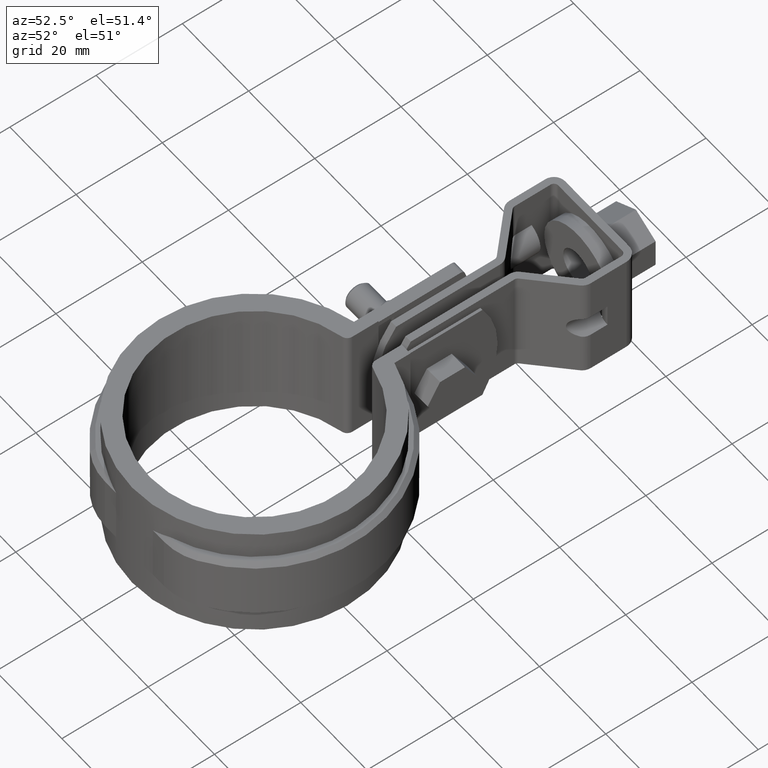
[diagram: clean part render]
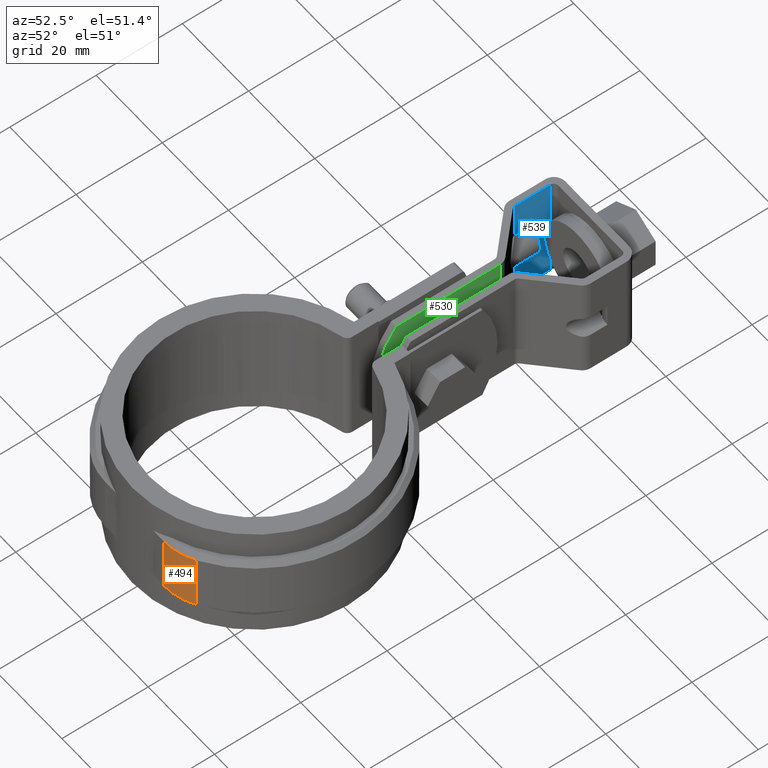
[diagram: same view with three faces highlighted in distinct colors, each labeled with its STEP entity id]
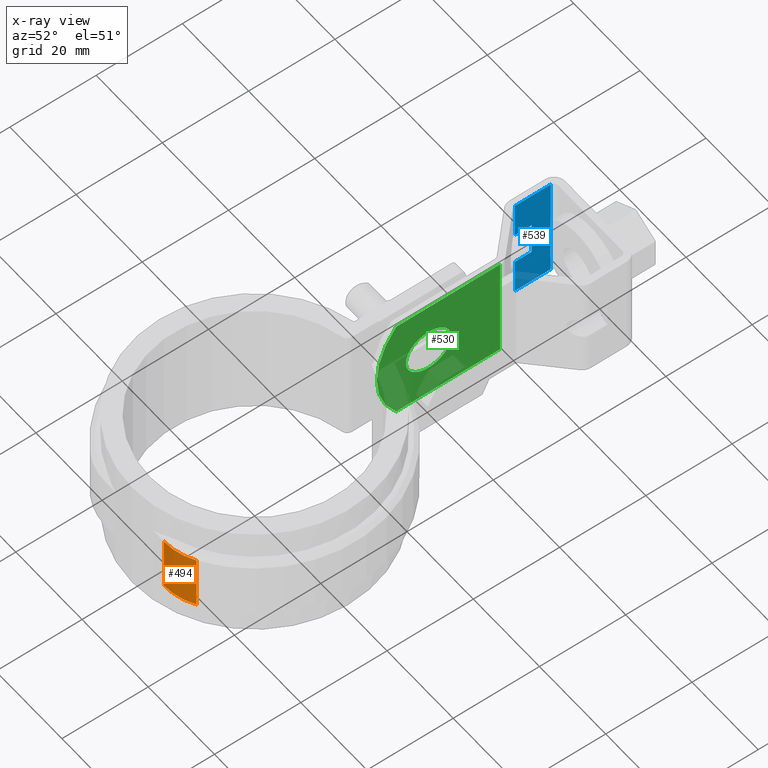
[diagram: x-ray of the same camera — body ghosted, the three highlighted faces saturated]
A machine part, auxiliary view with three faces highlighted in distinct colors.
The next image is the same camera in x-ray (body ghosted, the three faces saturated) — at least one of them is partly hidden behind the body in this view.
Their STEP definitions:

[orange] entity #494 — the highlighted cylindrical surface (partial cylindrical patch) has radius 13.6 mm, axis along (0, 0, -1).
#494 = ADVANCED_FACE( '', ( #988 ), #989, .T. );
#988 = FACE_OUTER_BOUND( '', #2346, .T. );
#989 = CYLINDRICAL_SURFACE( '', #2347, 13.6000000000000 );
#2346 = EDGE_LOOP( '', ( #5341, #5342, #5343, #5344 ) );
#2347 = AXIS2_PLACEMENT_3D( '', #5345, #5346, #5347 );
#5341 = ORIENTED_EDGE( '', *, *, #7730, .T. );
#5342 = ORIENTED_EDGE( '', *, *, #7732, .T. );
#5343 = ORIENTED_EDGE( '', *, *, #7720, .F. );
#5344 = ORIENTED_EDGE( '', *, *, #7719, .T. );
#5345 = CARTESIAN_POINT( '', ( 8.88873022427838, -14.2500000000000, -20.0000000000000 ) );
#5346 = DIRECTION( '', ( 0.000000000000000, 0.000000000000000, -1.00000000000000 ) );
#5347 = DIRECTION( '', ( 0.194983714095246, 0.980806480014087, 0.000000000000000 ) );
#7719 = EDGE_CURVE( '', #8988, #8991, #8993, .T. );
#7720 = EDGE_CURVE( '', #8988, #8994, #8995, .T. );
#7730 = EDGE_CURVE( '', #8991, #9003, #9007, .T. );
#7732 = EDGE_CURVE( '', #9003, #8994, #9009, .F. );
#8988 = VERTEX_POINT( '', #13133 );
#8991 = VERTEX_POINT( '', #13138 );
#8993 = CIRCLE( '', #13141, 13.6000000000000 );
#8994 = VERTEX_POINT( '', #13142 );
#8995 = LINE( '', #13143, #13144 );
#9003 = VERTEX_POINT( '', #13156 );
#9007 = LINE( '', #13161, #13162 );
#9009 = CIRCLE( '', #13165, 13.6000000000000 );
#13133 = CARTESIAN_POINT( '', ( 8.88873022427839, -27.8500000000000, -19.0000000000000 ) );
#13138 = CARTESIAN_POINT( '', ( 16.0865111739769, -25.7891485561179, -19.0000000000000 ) );
#13141 = AXIS2_PLACEMENT_3D( '', #15064, #15065, #15066 );
#13142 = CARTESIAN_POINT( '', ( 8.88873022427839, -27.8500000000000, -6.00000000000000 ) );
#13143 = CARTESIAN_POINT( '', ( 8.88873022427839, -27.8500000000000, -20.0000000000000 ) );
#13144 = VECTOR( '', #15067, 1000.00000000000 );
#13156 = CARTESIAN_POINT( '', ( 16.0865111739769, -25.7891485561179, -6.00000000000000 ) );
#13161 = CARTESIAN_POINT( '', ( 16.0865111739769, -25.7891485561179, -20.0000000000000 ) );
#13162 = VECTOR( '', #15085, 1000.00000000000 );
#13165 = AXIS2_PLACEMENT_3D( '', #15087, #15088, #15089 );
#15064 = CARTESIAN_POINT( '', ( 8.88873022427838, -14.2500000000000, -19.0000000000000 ) );
#15065 = DIRECTION( '', ( 0.000000000000000, 0.000000000000000, 1.00000000000000 ) );
#15066 = DIRECTION( '', ( 1.00000000000000, 0.000000000000000, 0.000000000000000 ) );
#15067 = DIRECTION( '', ( 0.000000000000000, 0.000000000000000, 1.00000000000000 ) );
#15085 = DIRECTION( '', ( 0.000000000000000, 0.000000000000000, 1.00000000000000 ) );
#15087 = CARTESIAN_POINT( '', ( 8.88873022427838, -14.2500000000000, -6.00000000000000 ) );
#15088 = DIRECTION( '', ( 0.000000000000000, 0.000000000000000, 1.00000000000000 ) );
#15089 = DIRECTION( '', ( 1.00000000000000, 0.000000000000000, 0.000000000000000 ) );

[blue] entity #539 — the highlighted planar face has unit normal (1, 0, -0).
#539 = ADVANCED_FACE( '', ( #1084 ), #1085, .T. );
#1084 = FACE_OUTER_BOUND( '', #2469, .T. );
#1085 = PLANE( '', #2470 );
#2469 = EDGE_LOOP( '', ( #5826, #5827, #5828, #5829, #5830, #5831, #5832, #5833, #5834, #5835 ) );
#2470 = AXIS2_PLACEMENT_3D( '', #5836, #5837, #5838 );
#5826 = ORIENTED_EDGE( '', *, *, #7825, .F. );
#5827 = ORIENTED_EDGE( '', *, *, #7848, .T. );
#5828 = ORIENTED_EDGE( '', *, *, #7851, .F. );
#5829 = ORIENTED_EDGE( '', *, *, #7852, .F. );
#5830 = ORIENTED_EDGE( '', *, *, #7742, .T. );
#5831 = ORIENTED_EDGE( '', *, *, #7853, .T. );
#5832 = ORIENTED_EDGE( '', *, *, #7827, .F. );
#5833 = ORIENTED_EDGE( '', *, *, #7832, .F. );
#5834 = ORIENTED_EDGE( '', *, *, #7841, .F. );
#5835 = ORIENTED_EDGE( '', *, *, #7830, .F. );
#5836 = CARTESIAN_POINT( '', ( -10.6500000006431, 76.8045271144761, -7.02937846819296E-008 ) );
#5837 = DIRECTION( '', ( 1.00000000000000, 3.46787463237663E-012, -2.03765905737930E-012 ) );
#5838 = DIRECTION( '', ( -3.46787463341350E-012, 1.00000000000000, -5.08856068393042E-010 ) );
#7742 = EDGE_CURVE( '', #9026, #9024, #9027, .T. );
#7825 = EDGE_CURVE( '', #9168, #9170, #9171, .T. );
#7827 = EDGE_CURVE( '', #9172, #9174, #9175, .F. );
#7830 = EDGE_CURVE( '', #9170, #9179, #9180, .T. );
#7832 = EDGE_CURVE( '', #9181, #9172, #9183, .T. );
#7841 = EDGE_CURVE( '', #9179, #9181, #9198, .T. );
#7848 = EDGE_CURVE( '', #9168, #9207, #9209, .T. );
#7851 = EDGE_CURVE( '', #9212, #9207, #9213, .T. );
#7852 = EDGE_CURVE( '', #9026, #9212, #9214, .T. );
#7853 = EDGE_CURVE( '', #9024, #9174, #9215, .T. );
#9024 = VERTEX_POINT( '', #13198 );
#9026 = VERTEX_POINT( '', #13200 );
#9027 = LINE( '', #13201, #13202 );
#9168 = VERTEX_POINT( '', #13417 );
#9170 = VERTEX_POINT( '', #13424 );
#9171 = LINE( '', #13425, #13426 );
#9172 = VERTEX_POINT( '', #13427 );
#9174 = VERTEX_POINT( '', #13429 );
#9175 = LINE( '', #13430, #13431 );
#9179 = VERTEX_POINT( '', #13440 );
#9180 = LINE( '', #13441, #13442 );
#9181 = VERTEX_POINT( '', #13443 );
#9183 = LINE( '', #13445, #13446 );
#9198 = LINE( '', #13480, #13481 );
#9207 = VERTEX_POINT( '', #13493 );
#9209 = LINE( '', #13495, #13496 );
#9212 = VERTEX_POINT( '', #13501 );
#9213 = LINE( '', #13502, #13503 );
#9214 = LINE( '', #13504, #13505 );
#9215 = LINE( '', #13506, #13507 );
#13198 = CARTESIAN_POINT( '', ( -10.6500000006143, 68.5003328833662, -6.60681509501160E-008 ) );
#13200 = CARTESIAN_POINT( '', ( -10.6500000006431, 76.8045271144761, -7.02937846819296E-008 ) );
#13201 = CARTESIAN_POINT( '', ( -10.6500000006431, 76.8045271144761, -7.02937846819296E-008 ) );
#13202 = VECTOR( '', #15103, 1000.00000000000 );
#13417 = CARTESIAN_POINT( '', ( -10.6500000006478, 68.5003328750019, -16.4373214905901 ) );
#13424 = CARTESIAN_POINT( '', ( -10.6500000006614, 72.4045271061116, -16.4373214925768 ) );
#13425 = CARTESIAN_POINT( '', ( -10.6500000006093, 57.4045271061119, -16.4373214849440 ) );
#13426 = VECTOR( '', #15239, 1000.00000000000 );
#13427 = CARTESIAN_POINT( '', ( -10.6500000006453, 72.4045271101187, -8.56267864353284 ) );
#13429 = CARTESIAN_POINT( '', ( -10.6500000006318, 68.5003328790090, -8.56267864154615 ) );
#13430 = CARTESIAN_POINT( '', ( -10.6500000005933, 57.4045271101189, -8.56267863589998 ) );
#13431 = VECTOR( '', #15243, 1000.00000000000 );
#13440 = CARTESIAN_POINT( '', ( -10.6500000006576, 72.4045271070402, -14.6124630854826 ) );
#13441 = CARTESIAN_POINT( '', ( -10.6500000006279, 72.4045271144761, -6.80548256637437E-008 ) );
#13442 = VECTOR( '', #15247, 1000.00000000000 );
#13443 = CARTESIAN_POINT( '', ( -10.6500000006490, 72.4045271091901, -10.3875370506271 ) );
#13445 = CARTESIAN_POINT( '', ( -10.6500000006279, 72.4045271144761, -6.80548256637437E-008 ) );
#13446 = VECTOR( '', #15251, 1000.00000000000 );
#13480 = CARTESIAN_POINT( '', ( -10.6500000006279, 72.4045271144761, -6.80548256637437E-008 ) );
#13481 = VECTOR( '', #15264, 1000.00000000000 );
#13493 = CARTESIAN_POINT( '', ( -10.6500000006653, 68.5003328706448, -25.0000000660682 ) );
#13495 = CARTESIAN_POINT( '', ( -10.6500000006143, 68.5003328833662, -6.60681509501160E-008 ) );
#13496 = VECTOR( '', #15277, 1000.00000000000 );
#13501 = CARTESIAN_POINT( '', ( -10.6500000006941, 76.8045271017547, -25.0000000702938 ) );
#13502 = CARTESIAN_POINT( '', ( -10.6500000006941, 76.8045271017547, -25.0000000702938 ) );
#13503 = VECTOR( '', #15280, 1000.00000000000 );
#13504 = CARTESIAN_POINT( '', ( -10.6500000006431, 76.8045271144761, -7.02937846819296E-008 ) );
#13505 = VECTOR( '', #15281, 1000.00000000000 );
#13506 = CARTESIAN_POINT( '', ( -10.6500000006143, 68.5003328833662, -6.60681509501160E-008 ) );
#13507 = VECTOR( '', #15282, 1000.00000000000 );
#15103 = DIRECTION( '', ( 3.46787463341350E-012, -1.00000000000000, 5.08856068393042E-010 ) );
#15239 = DIRECTION( '', ( -3.46787463341350E-012, 1.00000000000000, -5.08856068393042E-010 ) );
#15243 = DIRECTION( '', ( -3.46787463341350E-012, 1.00000000000000, -5.08856068393042E-010 ) );
#15247 = DIRECTION( '', ( 2.03765905561465E-012, 5.08856068393049E-010, 1.00000000000000 ) );
#15251 = DIRECTION( '', ( 2.03765905561465E-012, 5.08856068393049E-010, 1.00000000000000 ) );
#15264 = DIRECTION( '', ( 2.03765905561465E-012, 5.08856068393049E-010, 1.00000000000000 ) );
#15277 = DIRECTION( '', ( -2.03765905561465E-012, -5.08856068393049E-010, -1.00000000000000 ) );
#15280 = DIRECTION( '', ( 3.46787463341350E-012, -1.00000000000000, 5.08856068393042E-010 ) );
#15281 = DIRECTION( '', ( -2.03765905561465E-012, -5.08856068393049E-010, -1.00000000000000 ) );
#15282 = DIRECTION( '', ( -2.03765905561465E-012, -5.08856068393049E-010, -1.00000000000000 ) );

[green] entity #530 — the highlighted planar face has unit normal (1, 0, -0).
#530 = ADVANCED_FACE( '', ( #1064, #1065 ), #1066, .T. );
#1064 = FACE_BOUND( '', #2449, .T. );
#1065 = FACE_OUTER_BOUND( '', #2450, .T. );
#1066 = PLANE( '', #2451 );
#2449 = EDGE_LOOP( '', ( #5756 ) );
#2450 = EDGE_LOOP( '', ( #5757, #5758, #5759, #5760 ) );
#2451 = AXIS2_PLACEMENT_3D( '', #5761, #5762, #5763 );
#5756 = ORIENTED_EDGE( '', *, *, #7820, .T. );
#5757 = ORIENTED_EDGE( '', *, *, #7823, .T. );
#5758 = ORIENTED_EDGE( '', *, *, #7816, .T. );
#5759 = ORIENTED_EDGE( '', *, *, #7738, .F. );
#5760 = ORIENTED_EDGE( '', *, *, #7818, .T. );
#5761 = CARTESIAN_POINT( '', ( -1.40000000052968, 29.4045271017870, -25.0000000461929 ) );
#5762 = DIRECTION( '', ( 1.00000000000000, 3.46765258777167E-012, -2.03772028769688E-012 ) );
#5763 = DIRECTION( '', ( 3.46765258880858E-012, -1.00000000000000, 5.08856068393042E-010 ) );
#7738 = EDGE_CURVE( '', #9017, #9018, #9019, .T. );
#7816 = EDGE_CURVE( '', #9152, #9018, #9155, .T. );
#7818 = EDGE_CURVE( '', #9017, #9157, #9159, .T. );
#7820 = EDGE_CURVE( '', #9161, #9161, #9162, .F. );
#7823 = EDGE_CURVE( '', #9157, #9152, #9166, .T. );
#9017 = VERTEX_POINT( '', #13189 );
#9018 = VERTEX_POINT( '', #13190 );
#9019 = LINE( '', #13191, #13192 );
#9152 = VERTEX_POINT( '', #13396 );
#9155 = LINE( '', #13400, #13401 );
#9157 = VERTEX_POINT( '', #13403 );
#9159 = CIRCLE( '', #13406, 19.6111110000000 );
#9161 = VERTEX_POINT( '', #13408 );
#9162 = CIRCLE( '', #13409, 5.25000000000000 );
#9166 = LINE( '', #13414, #13415 );
#13189 = CARTESIAN_POINT( '', ( -1.40000000049434, 33.9045271475964, -4.84827178404146E-008 ) );
#13190 = CARTESIAN_POINT( '', ( -1.40000000057776, 57.9586734888044, -6.07228295423923E-008 ) );
#13191 = CARTESIAN_POINT( '', ( -1.40000000047874, 29.4045271145084, -4.61928689743374E-008 ) );
#13192 = VECTOR( '', #15095, 1000.00000000000 );
#13396 = CARTESIAN_POINT( '', ( -1.40000000062871, 57.9586734760830, -25.0000000607228 ) );
#13400 = CARTESIAN_POINT( '', ( -1.40000000062870, 57.9586734760830, -25.0000000607228 ) );
#13401 = VECTOR( '', #15223, 1000.00000000000 );
#13403 = CARTESIAN_POINT( '', ( -1.40000000054529, 33.9045271348751, -25.0000000484827 ) );
#13406 = AXIS2_PLACEMENT_3D( '', #15225, #15226, #15227 );
#13408 = CARTESIAN_POINT( '', ( -1.40000000052762, 36.1545271081475, -12.5000000496276 ) );
#13409 = AXIS2_PLACEMENT_3D( '', #15231, #15232, #15233 );
#13414 = CARTESIAN_POINT( '', ( -1.40000000052968, 29.4045271017870, -25.0000000461929 ) );
#13415 = VECTOR( '', #15238, 1000.00000000000 );
#15095 = DIRECTION( '', ( -3.46798565571597E-012, 1.00000000000000, -5.08856068393042E-010 ) );
#15223 = DIRECTION( '', ( 2.03772028593234E-012, 5.08856008656157E-010, 1.00000000000000 ) );
#15225 = CARTESIAN_POINT( '', ( -1.40000000057221, 49.0156381081474, -12.5000000561721 ) );
#15226 = DIRECTION( '', ( 1.00000000000000, 3.46765258777167E-012, -2.03772028769688E-012 ) );
#15227 = DIRECTION( '', ( 3.46765258880858E-012, -1.00000000000000, 5.08856068393042E-010 ) );
#15231 = CARTESIAN_POINT( '', ( -1.40000000054582, 41.4045271081475, -12.5000000522991 ) );
#15232 = DIRECTION( '', ( 1.00000000000000, 3.46765258777167E-012, -2.03772028769688E-012 ) );
#15233 = DIRECTION( '', ( 3.46765258880858E-012, -1.00000000000000, 5.08856068393042E-010 ) );
#15238 = DIRECTION( '', ( -3.46798565571597E-012, 1.00000000000000, -5.08856068393042E-010 ) );